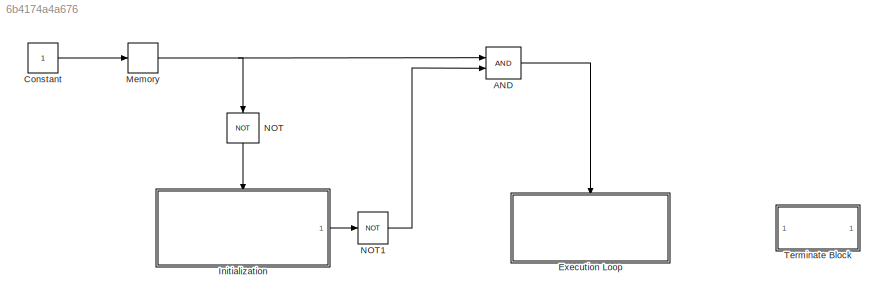
MODEL slx_6b4174a4a676
KIND model
CONFIG AbsTol = auto
CONFIG EnableMultiTasking = off
CONFIG FixedStep = 0.005
CONFIG MaxStep = auto
CONFIG MinStep = auto
CONFIG RelTol = 1e-3
CONFIG SampleTimeConstraint = Unconstrained
CONFIG Solver = FixedStepAuto
CONFIG SolverName = FixedStepAuto
CONFIG StartTime = 0.0
CONFIG StopTime = inf
BLOCK [Logic] AND
  AllPortsSameDT = off
  IconShape = distinctive
  OutDataTypeStr = boolean
  Ports = [2, 1]
BLOCK [Constant] Constant
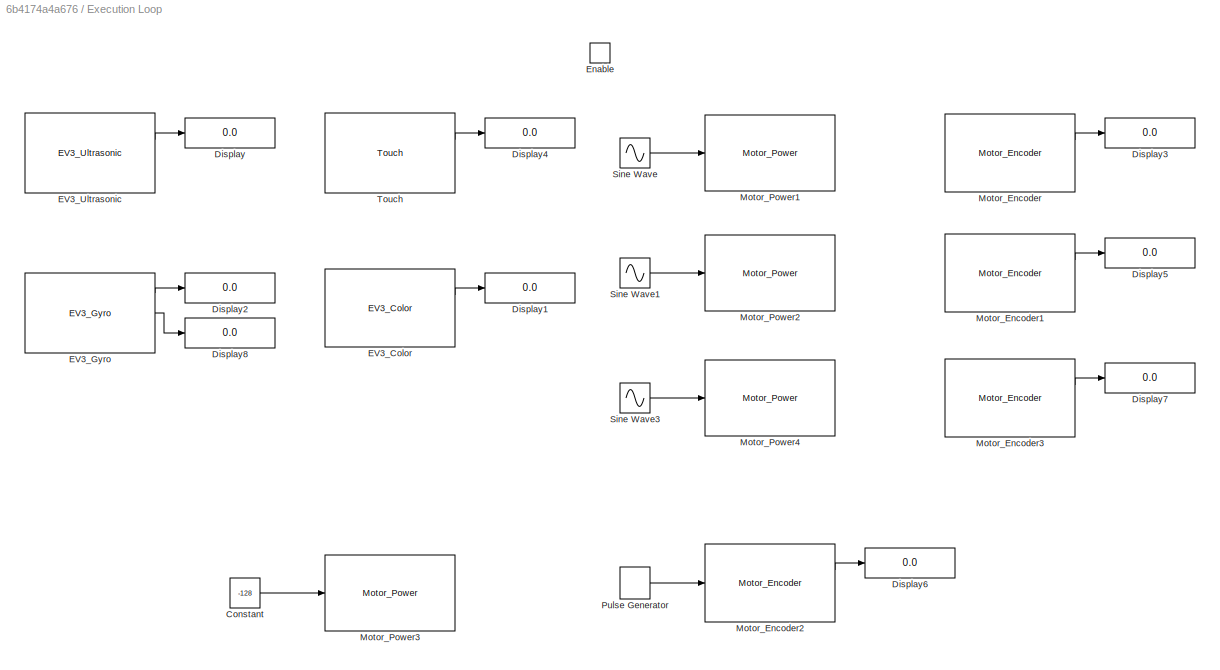
BLOCK [SubSystem] Execution Loop
  Ports = [0, 0, 1]
  RequestExecContextInheritance = off
BLOCK [Constant] Execution Loop/Constant
  Value = -128
BLOCK [Display] Execution Loop/Display
  Decimation = 1
  Ports = [1]
BLOCK [Display] Execution Loop/Display1
  Decimation = 1
  Ports = [1]
BLOCK [Display] Execution Loop/Display2
  Decimation = 1
  Ports = [1]
BLOCK [Display] Execution Loop/Display3
  Decimation = 1
  Ports = [1]
BLOCK [Display] Execution Loop/Display4
  Decimation = 1
  Ports = [1]
BLOCK [Display] Execution Loop/Display5
  Decimation = 1
  Ports = [1]
BLOCK [Display] Execution Loop/Display6
  Decimation = 1
  Ports = [1]
BLOCK [Display] Execution Loop/Display7
  Decimation = 1
  Ports = [1]
BLOCK [Display] Execution Loop/Display8
  Decimation = 1
  Ports = [1]
BLOCK [Reference] Execution Loop/EV3_Color  REF=BrickPi/EV3_Color
  Ports = [0, 2]
  SourceBlock = BrickPi/EV3_Color
BLOCK [Reference] Execution Loop/EV3_Gyro  REF=BrickPi/EV3_Gyro
  Ports = [0, 3]
  SourceBlock = BrickPi/EV3_Gyro
BLOCK [Reference] Execution Loop/EV3_Ultrasonic  REF=BrickPi/EV3_Ultrasonic
  Ports = [0, 2]
  SourceBlock = BrickPi/EV3_Ultrasonic
BLOCK [EnablePort] Execution Loop/Enable
  Ports = []
BLOCK [Reference] Execution Loop/Motor_Encoder  REF=BrickPi/Motor_Encoder
  Ports = [0, 2]
  SourceBlock = BrickPi/Motor_Encoder
BLOCK [Reference] Execution Loop/Motor_Encoder1  REF=BrickPi/Motor_Encoder
  Ports = [0, 2]
  SourceBlock = BrickPi/Motor_Encoder
BLOCK [Reference] Execution Loop/Motor_Encoder2  REF=BrickPi/Motor_Encoder
  Ports = [1, 2]
  SourceBlock = BrickPi/Motor_Encoder
BLOCK [Reference] Execution Loop/Motor_Encoder3  REF=BrickPi/Motor_Encoder
  Ports = [0, 2]
  SourceBlock = BrickPi/Motor_Encoder
BLOCK [Reference] Execution Loop/Motor_Power1  REF=BrickPi/Motor_Power
  Ports = [1]
  SourceBlock = BrickPi/Motor_Power
BLOCK [Reference] Execution Loop/Motor_Power2  REF=BrickPi/Motor_Power
  Ports = [1]
  SourceBlock = BrickPi/Motor_Power
BLOCK [Reference] Execution Loop/Motor_Power3  REF=BrickPi/Motor_Power
  Ports = [1]
  SourceBlock = BrickPi/Motor_Power
BLOCK [Reference] Execution Loop/Motor_Power4  REF=BrickPi/Motor_Power
  Ports = [1]
  SourceBlock = BrickPi/Motor_Power
BLOCK [DiscretePulseGenerator] Execution Loop/Pulse Generator
  Period = 5
  Ports = [0, 1]
  PulseType = Time based
BLOCK [Sin] Execution Loop/Sine Wave
  Amplitude = 10
  Ports = [0, 1]
  SampleTime = 0
BLOCK [Sin] Execution Loop/Sine Wave1
  Amplitude = 10
  Ports = [0, 1]
  SampleTime = 0
BLOCK [Sin] Execution Loop/Sine Wave3
  Amplitude = 10
  Ports = [0, 1]
  SampleTime = 0
BLOCK [Reference] Execution Loop/Touch  REF=BrickPi/Touch
  Ports = [0, 2]
  SourceBlock = BrickPi/Touch
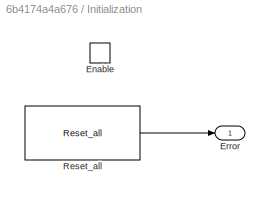
BLOCK [SubSystem] Initialization
  Ports = [0, 1, 1]
  RequestExecContextInheritance = off
  TreatAsAtomicUnit = on
BLOCK [EnablePort] Initialization/Enable
  Ports = []
BLOCK [Outport] Initialization/Error
  IconDisplay = Port number
BLOCK [Reference] Initialization/Reset_all  REF=BrickPi/Reset_all
  Ports = [0, 1]
  SourceBlock = BrickPi/Reset_all
BLOCK [Memory] Memory
BLOCK [Logic] NOT
  AllPortsSameDT = off
  IconShape = distinctive
  Operator = NOT
  OutDataTypeStr = boolean
  Ports = [1, 1]
BLOCK [Logic] NOT1
  AllPortsSameDT = off
  IconShape = distinctive
  Operator = NOT
  OutDataTypeStr = boolean
  Ports = [1, 1]
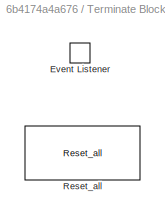
BLOCK [SubSystem] Terminate Block
  Ports = []
  RequestExecContextInheritance = off
  TreatAsAtomicUnit = on
BLOCK [EventListener] Terminate Block/Event Listener
  DisableCoverage = on
  EventName = reset
  EventType = Terminate
BLOCK [Reference] Terminate Block/Reset_all  REF=BrickPi/Reset_all
  Ports = [0, 1]
  SourceBlock = BrickPi/Reset_all
LINE AND:1 -> Execution Loop:enable
LINE Constant:1 -> Memory:1
LINE Execution Loop/Constant:1 -> Execution Loop/Motor_Power3:1
LINE Execution Loop/EV3_Color:1 -> Execution Loop/Display1:1
LINE Execution Loop/EV3_Gyro:1 -> Execution Loop/Display2:1
LINE Execution Loop/EV3_Gyro:2 -> Execution Loop/Display8:1
LINE Execution Loop/EV3_Ultrasonic:1 -> Execution Loop/Display:1
LINE Execution Loop/Motor_Encoder1:1 -> Execution Loop/Display5:1
LINE Execution Loop/Motor_Encoder2:1 -> Execution Loop/Display6:1
LINE Execution Loop/Motor_Encoder3:1 -> Execution Loop/Display7:1
LINE Execution Loop/Motor_Encoder:1 -> Execution Loop/Display3:1
LINE Execution Loop/Pulse Generator:1 -> Execution Loop/Motor_Encoder2:1
LINE Execution Loop/Sine Wave1:1 -> Execution Loop/Motor_Power2:1
LINE Execution Loop/Sine Wave3:1 -> Execution Loop/Motor_Power4:1
LINE Execution Loop/Sine Wave:1 -> Execution Loop/Motor_Power1:1
LINE Execution Loop/Touch:1 -> Execution Loop/Display4:1
LINE Initialization/Reset_all:1 -> Initialization/Error:1
LINE Initialization:1 -> NOT1:1
NET Memory:1 -> AND:1, NOT:1
LINE NOT1:1 -> AND:2
LINE NOT:1 -> Initialization:enable
note: NET lines group one-source signal fan-out (src -> all destinations, sorted); 1:1 wires keep LINE
